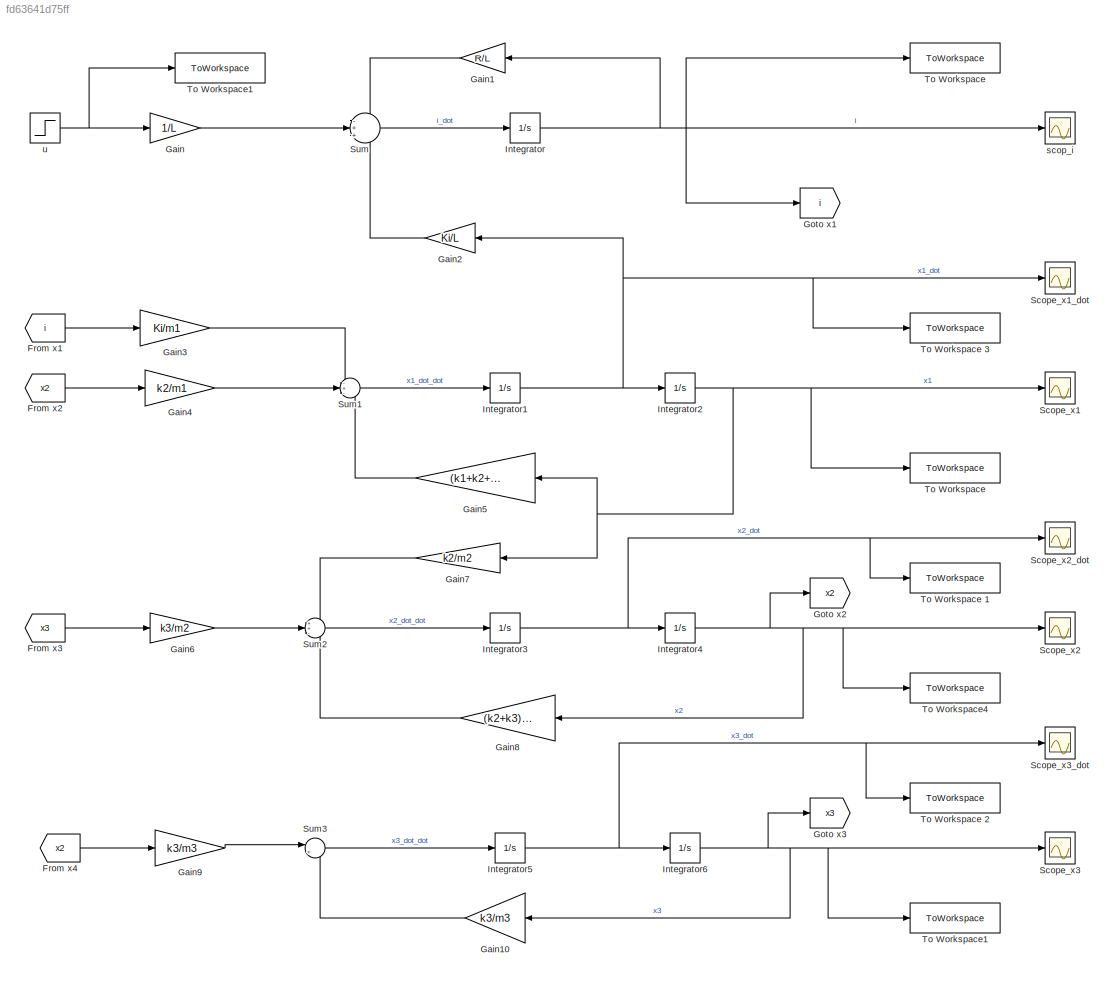
MODEL slx_fd63641d75ff
KIND model
CONFIG AbsTol = auto
CONFIG EnableMultiTasking = off
CONFIG FixedStep = auto
CONFIG MaxStep = auto
CONFIG MinStep = auto
CONFIG RelTol = 1e-3
CONFIG SampleTimeConstraint = Unconstrained
CONFIG Solver = VariableStepAuto
CONFIG SolverName = VariableStepAuto
CONFIG StartTime = 0.0
CONFIG StopTime = 5
BLOCK [From] From x1
  GotoTag = i
BLOCK [From] From x2
  GotoTag = x2
BLOCK [From] From x3
  GotoTag = x3
BLOCK [From] From x4
  GotoTag = x2
BLOCK [Gain] Gain
  Gain = 1/L
BLOCK [Gain] Gain1
  Gain = R/L
BLOCK [Gain] Gain10
  Gain = k3/m3
BLOCK [Gain] Gain2
  Gain = Ki/L
BLOCK [Gain] Gain3
  Gain = Ki/m1
BLOCK [Gain] Gain4
  Gain = k2/m1
BLOCK [Gain] Gain5
  Gain = (k1+k2+Ks)/m1
BLOCK [Gain] Gain6
  Gain = k3/m2
BLOCK [Gain] Gain7
  Gain = k2/m2
BLOCK [Gain] Gain8
  Gain = (k2+k3)/m2
BLOCK [Gain] Gain9
  Gain = k3/m3
BLOCK [Goto] Goto x1
  GotoTag = i
BLOCK [Goto] Goto x2
  GotoTag = x2
BLOCK [Goto] Goto x3
  GotoTag = x3
BLOCK [Integrator] Integrator
  InitialCondition = x_0(1)
  Ports = [1, 1]
BLOCK [Integrator] Integrator1
  InitialCondition = x_0(3)
  Ports = [1, 1]
BLOCK [Integrator] Integrator2
  InitialCondition = x_0(2)
  Ports = [1, 1]
BLOCK [Integrator] Integrator3
  InitialCondition = x_0(5)
  Ports = [1, 1]
BLOCK [Integrator] Integrator4
  InitialCondition = x_0(4)
  Ports = [1, 1]
BLOCK [Integrator] Integrator5
  InitialCondition = x_0(7)
  Ports = [1, 1]
BLOCK [Integrator] Integrator6
  InitialCondition = x_0(6)
  Ports = [1, 1]
BLOCK [Scope] Scope_x1
  Floating = off
  NumInputPorts = 1
  Ports = [1]
  ScopeSpecificationString = Simulink.scopes.TimeScopeBlockCfg('CurrentConfiguration', extmgr.ConfigurationSet(extmgr.Configuration('Core','General UI',true),extmgr.Configuration('Core','Source UI',true),extmgr.Configuration('Sources','WiredSimulink',true,'DataLoggingVariableName','ScopeData1'),extmgr.Configuration('Visuals','Time Domain',true,'SerializedDisplays',{struct('MinYLimReal','-0.00093','MaxYLimReal','0.00121','YLab...<+1361ch>
BLOCK [Scope] Scope_x1_dot
  Floating = off
  NumInputPorts = 1
  Ports = [1]
  ScopeSpecificationString = Simulink.scopes.TimeScopeBlockCfg('CurrentConfiguration', extmgr.ConfigurationSet(extmgr.Configuration('Core','General UI',true),extmgr.Configuration('Core','Source UI',true),extmgr.Configuration('Sources','WiredSimulink',true,'DataLoggingVariableName','ScopeData4'),extmgr.Configuration('Visuals','Time Domain',true,'SerializedDisplays',{struct('MinYLimReal','-0.09582','MaxYLimReal','0.09581','YLab...<+1365ch>
BLOCK [Scope] Scope_x2
  Floating = off
  NumInputPorts = 1
  Ports = [1]
  ScopeSpecificationString = Simulink.scopes.TimeScopeBlockCfg('CurrentConfiguration', extmgr.ConfigurationSet(extmgr.Configuration('Core','General UI',true),extmgr.Configuration('Core','Source UI',true),extmgr.Configuration('Sources','WiredSimulink',true,'DataLoggingVariableName','ScopeData2'),extmgr.Configuration('Visuals','Time Domain',true),extmgr.Configuration('Tools','Plot Navigation',true),extmgr.Configuration('Tools',...<+58ch>
BLOCK [Scope] Scope_x2_dot
  Floating = off
  NumInputPorts = 1
  Ports = [1]
  ScopeSpecificationString = Simulink.scopes.TimeScopeBlockCfg('CurrentConfiguration', extmgr.ConfigurationSet(extmgr.Configuration('Core','General UI',true),extmgr.Configuration('Core','Source UI',true),extmgr.Configuration('Sources','WiredSimulink',true,'DataLoggingVariableName','ScopeData5'),extmgr.Configuration('Visuals','Time Domain',true),extmgr.Configuration('Tools','Plot Navigation',true),extmgr.Configuration('Tools',...<+58ch>
BLOCK [Scope] Scope_x3
  Floating = off
  NumInputPorts = 1
  Ports = [1]
  ScopeSpecificationString = Simulink.scopes.TimeScopeBlockCfg('CurrentConfiguration', extmgr.ConfigurationSet(extmgr.Configuration('Core','General UI',true),extmgr.Configuration('Core','Source UI',true),extmgr.Configuration('Sources','WiredSimulink',true,'DataLoggingVariableName','ScopeData3'),extmgr.Configuration('Visuals','Time Domain',true),extmgr.Configuration('Tools','Plot Navigation',true),extmgr.Configuration('Tools',...<+58ch>
BLOCK [Scope] Scope_x3_dot
  Floating = off
  NumInputPorts = 1
  Ports = [1]
  ScopeSpecificationString = Simulink.scopes.TimeScopeBlockCfg('CurrentConfiguration', extmgr.ConfigurationSet(extmgr.Configuration('Core','General UI',true),extmgr.Configuration('Core','Source UI',true),extmgr.Configuration('Sources','WiredSimulink',true,'DataLoggingVariableName','ScopeData6'),extmgr.Configuration('Visuals','Time Domain',true),extmgr.Configuration('Tools','Plot Navigation',true),extmgr.Configuration('Tools',...<+58ch>
BLOCK [Sum] Sum
  Inputs = -++
  Ports = [3, 1]
BLOCK [Sum] Sum1
  Inputs = -+-
  Ports = [3, 1]
BLOCK [Sum] Sum2
  Inputs = ++-
  Ports = [3, 1]
BLOCK [Sum] Sum3
  Inputs = |+-
  Ports = [2, 1]
BLOCK [ToWorkspace] To  Workspace
  FixptAsFi = on
  MaxDataPoints = inf
  Ports = [1]
  SampleTime = -1
  SaveFormat = Structure With Time
  VariableName = i
BLOCK [ToWorkspace] To  Workspace1
  FixptAsFi = on
  MaxDataPoints = inf
  Ports = [1]
  SampleTime = -1
  SaveFormat = Structure With Time
  VariableName = u
BLOCK [ToWorkspace] To Workspace 
  FixptAsFi = on
  MaxDataPoints = inf
  Ports = [1]
  SampleTime = -1
  SaveFormat = Structure With Time
  VariableName = x1
BLOCK [ToWorkspace] To Workspace 1
  FixptAsFi = on
  MaxDataPoints = inf
  Ports = [1]
  SampleTime = -1
  SaveFormat = Structure With Time
  VariableName = x2d
BLOCK [ToWorkspace] To Workspace 2
  FixptAsFi = on
  MaxDataPoints = inf
  Ports = [1]
  SampleTime = -1
  SaveFormat = Structure With Time
  VariableName = x3d
BLOCK [ToWorkspace] To Workspace 3
  FixptAsFi = on
  MaxDataPoints = inf
  Ports = [1]
  SampleTime = -1
  SaveFormat = Structure With Time
  VariableName = x1d
BLOCK [ToWorkspace] To Workspace1
  FixptAsFi = on
  MaxDataPoints = inf
  Ports = [1]
  SampleTime = -1
  SaveFormat = Structure With Time
  VariableName = x3
BLOCK [ToWorkspace] To Workspace4
  FixptAsFi = on
  MaxDataPoints = inf
  Ports = [1]
  SampleTime = -1
  SaveFormat = Structure With Time
  VariableName = x2
BLOCK [Scope] scop_i
  Floating = off
  NumInputPorts = 1
  Ports = [1]
  ScopeSpecificationString = Simulink.scopes.TimeScopeBlockCfg('CurrentConfiguration', extmgr.ConfigurationSet(extmgr.Configuration('Core','General UI',true),extmgr.Configuration('Core','Source UI',true),extmgr.Configuration('Sources','WiredSimulink',true),extmgr.Configuration('Visuals','Time Domain',true,'SerializedDisplays',{struct('MinYLimReal','-0.01259','MaxYLimReal','0.01279','YLabelReal','','MinYLimMag','0.00000','MaxY...<+1355ch>
BLOCK [Step] u
  After = u_0
  SampleTime = 0
LINE From x1:1 -> Gain3:1
LINE From x2:1 -> Gain4:1
LINE From x3:1 -> Gain6:1
LINE From x4:1 -> Gain9:1
LINE Gain10:1 -> Sum3:2
LINE Gain1:1 -> Sum:1
LINE Gain2:1 -> Sum:3
LINE Gain3:1 -> Sum1:1
LINE Gain4:1 -> Sum1:2
LINE Gain5:1 -> Sum1:3
LINE Gain6:1 -> Sum2:2
LINE Gain7:1 -> Sum2:1
LINE Gain8:1 -> Sum2:3
LINE Gain9:1 -> Sum3:1
LINE Gain:1 -> Sum:2
NET Integrator1:1 -> Gain2:1, Integrator2:1, Scope_x1_dot:1, To Workspace 3:1
NET Integrator2:1 -> Gain5:1, Gain7:1, Scope_x1:1, To Workspace :1
NET Integrator3:1 -> Integrator4:1, Scope_x2_dot:1, To Workspace 1:1
NET Integrator4:1 -> Gain8:1, Goto x2:1, Scope_x2:1, To Workspace4:1
NET Integrator5:1 -> Integrator6:1, Scope_x3_dot:1, To Workspace 2:1
NET Integrator6:1 -> Gain10:1, Goto x3:1, Scope_x3:1, To Workspace1:1
NET Integrator:1 -> Gain1:1, Goto x1:1, To  Workspace:1, scop_i:1
LINE Sum1:1 -> Integrator1:1
LINE Sum2:1 -> Integrator3:1
LINE Sum3:1 -> Integrator5:1
LINE Sum:1 -> Integrator:1
NET u:1 -> Gain:1, To  Workspace1:1
note: NET lines group one-source signal fan-out (src -> all destinations, sorted); 1:1 wires keep LINE
